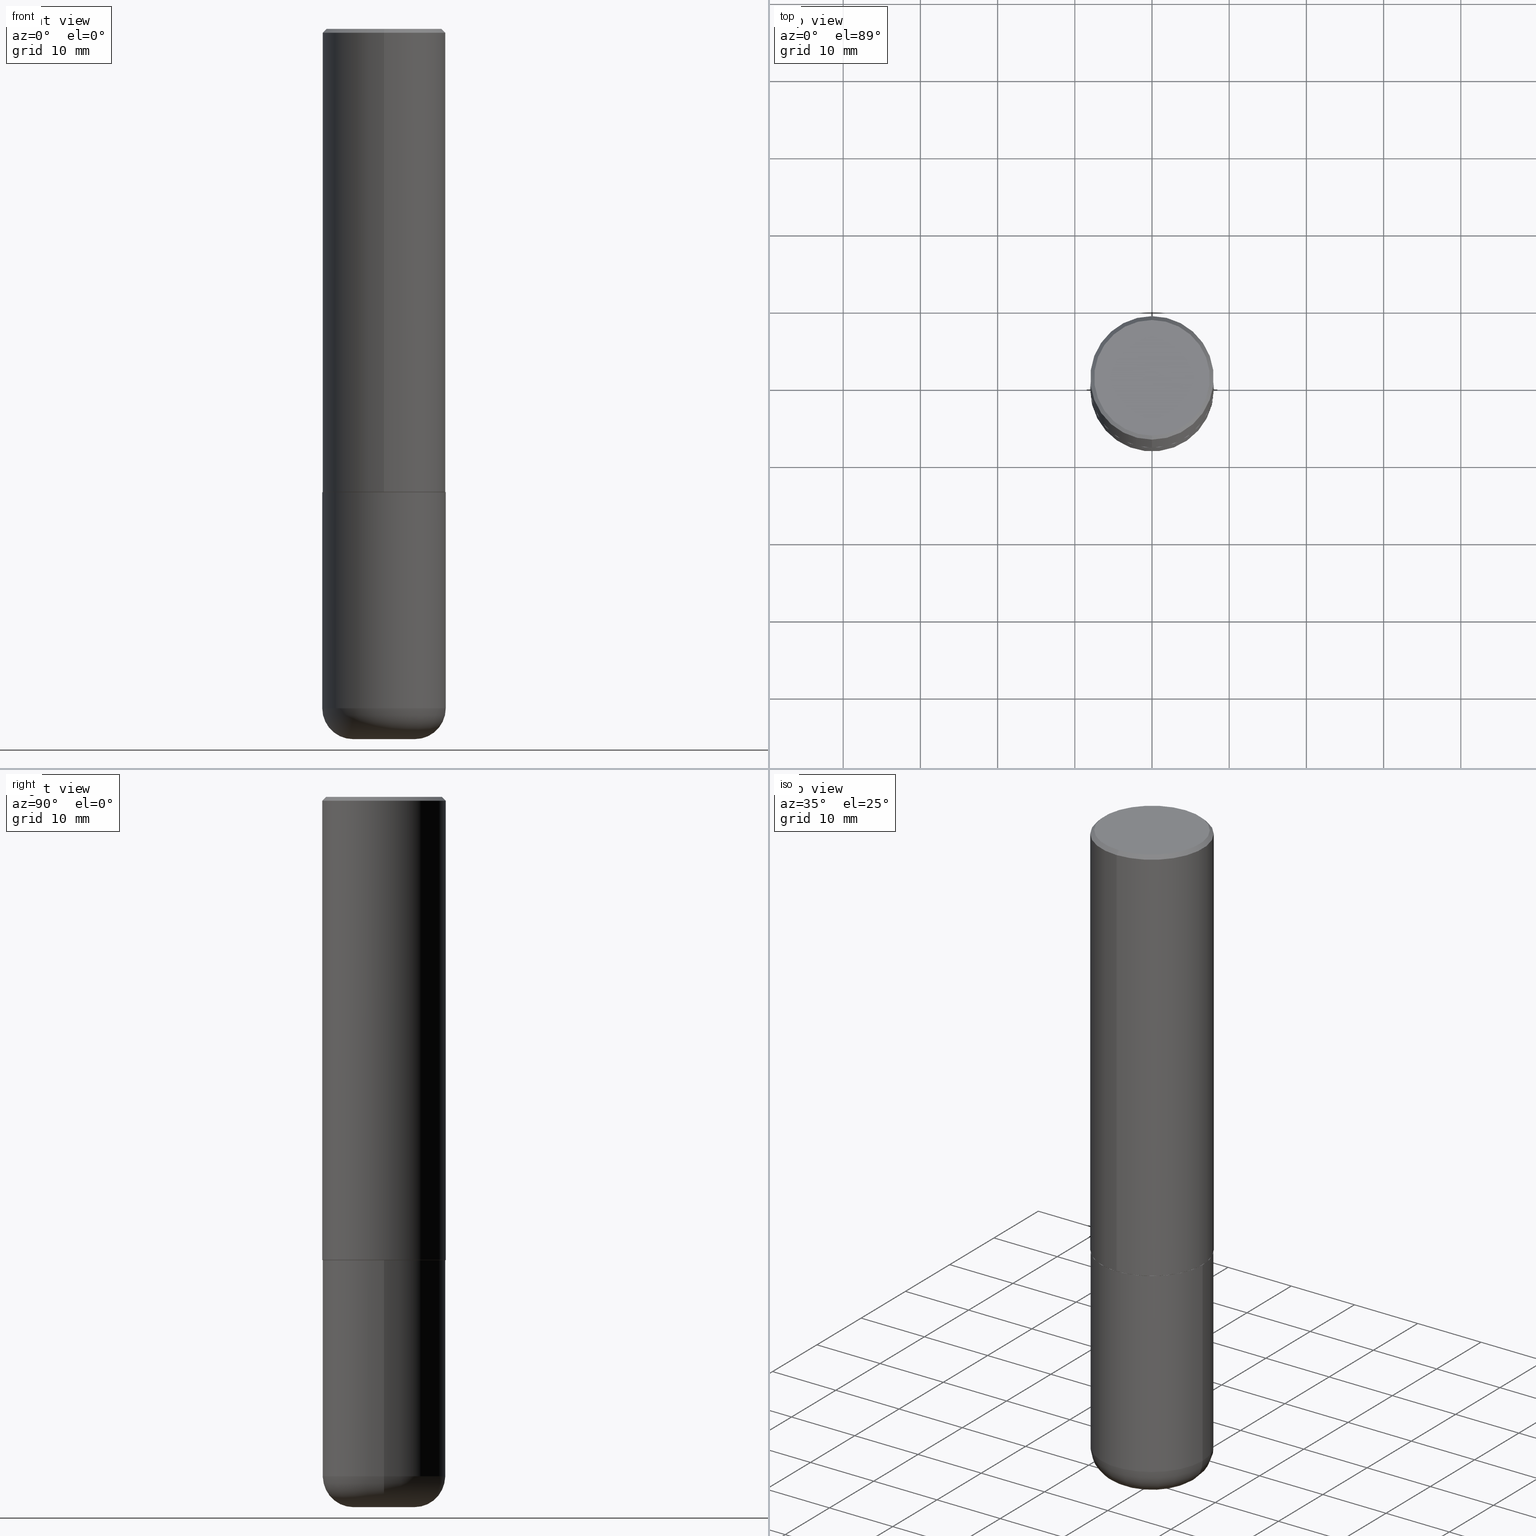
[diagram: canonical four-view strip — front | top / right | iso, engineering-drawing reading convention]
A machine part, canonical four-view strip (front | top / right | iso — engineering-drawing reading convention). The complete STEP part file that produces these views, byte-faithful:
ISO-10303-21;
HEADER;
FILE_DESCRIPTION (( 'STEP AP203' ),
    '1' );
FILE_NAME ('46483.STEP',
    '2024-03-05T00:00:16',
    ( '' ),
    ( '' ),
    'SwSTEP 2.0',
    'SolidWorks 2023',
    '' );
FILE_SCHEMA (( 'CONFIG_CONTROL_DESIGN' ));
ENDSEC;

DATA;
#1 = EDGE_CURVE ( 'NONE', #132, #163, #119, .T. ) ;
#2 = DIRECTION ( 'NONE',  ( 6.982962677686265922E-15, 1.000000000000000000, -3.496670018878888311E-15 ) ) ;
#3 = DIRECTION ( 'NONE',  ( -2.445468806185136597E-29, 3.491481338843145583E-15, 1.000000000000000000 ) ) ;
#4 = FACE_OUTER_BOUND ( 'NONE', #410, .T. ) ;
#5 = DIRECTION ( 'NONE',  ( 1.000000000000000000, 0.000000000000000000, 0.000000000000000000 ) ) ;
#6 =( CONVERSION_BASED_UNIT ( 'INCH', #207 ) LENGTH_UNIT ( ) NAMED_UNIT ( #20 ) );
#7 = DIRECTION ( 'NONE',  ( -6.982962677686265922E-15, -1.000000000000000000, 3.469564049740290009E-15 ) ) ;
#8 = AXIS2_PLACEMENT_3D ( 'NONE', #62, #284, #5 ) ;
#9 = CC_DESIGN_PERSON_AND_ORGANIZATION_ASSIGNMENT ( #138, #146, ( #273 ) ) ;
#10 = CARTESIAN_POINT ( 'NONE',  ( 5.770974637860933974E-29, -8.255756807098324700E-15, -2.362199999999999633 ) ) ;
#11 = CARTESIAN_POINT ( 'NONE',  ( -2.160713844398143757E-15, -0.3149500000000001743, -0.01999999999999898387 ) ) ;
#12 = FACE_OUTER_BOUND ( 'NONE', #193, .T. ) ;
#13 = PERSON_AND_ORGANIZATION_ROLE ( 'design_supplier' ) ;
#14 = EDGE_CURVE ( 'NONE', #197, #44, #286, .T. ) ;
#15 = DIRECTION ( 'NONE',  ( 5.024295867787889629E-15, 0.7071067811865257013, 0.7071067811865691111 ) ) ;
#16 = DATE_AND_TIME ( #304, #401 ) ;
#17 = ORIENTED_EDGE ( 'NONE', *, *, #70, .F. ) ;
#18 = DATE_AND_TIME ( #220, #97 ) ;
#19 = PERSON_AND_ORGANIZATION ( #199, #294 ) ;
#20 = DIMENSIONAL_EXPONENTS ( 1.000000000000000000, 0.000000000000000000, 0.000000000000000000, 0.000000000000000000, 0.000000000000000000, 0.000000000000000000, 0.000000000000000000 ) ;
#21 = AXIS2_PLACEMENT_3D ( 'NONE', #296, #172, #37 ) ;
#22 = AXIS2_PLACEMENT_3D ( 'NONE', #108, #137, #262 ) ;
#23 = CC_DESIGN_PERSON_AND_ORGANIZATION_ASSIGNMENT ( #173, #366, ( #330 ) ) ;
#24 = EDGE_LOOP ( 'NONE', ( #272, #348, #302, #148 ) ) ;
#25 = ORIENTED_EDGE ( 'NONE', *, *, #14, .T. ) ;
#26 =( NAMED_UNIT ( * ) SI_UNIT ( $, .STERADIAN. ) SOLID_ANGLE_UNIT ( ) );
#27 = AXIS2_PLACEMENT_3D ( 'NONE', #386, #295, #208 ) ;
#28 = CARTESIAN_POINT ( 'NONE',  ( 0.1574500000000000066, -1.319570457202378025E-14, -3.464499999999999691 ) ) ;
#29 = CIRCLE ( 'NONE', #85, 0.3139500000000000068 ) ;
#30 = EDGE_CURVE ( 'NONE', #307, #178, #293, .T. ) ;
#31 = CARTESIAN_POINT ( 'NONE',  ( 5.770974637860933974E-29, -8.255756807098324700E-15, -2.362199999999999633 ) ) ;
#32 = CARTESIAN_POINT ( 'NONE',  ( 0.1574500000000000621, -1.374561288289157517E-14, -3.621999999999999886 ) ) ;
#33 = CYLINDRICAL_SURFACE ( 'NONE', #336, 0.3149500000000000077 ) ;
#34 = CC_DESIGN_PERSON_AND_ORGANIZATION_ASSIGNMENT ( #328, #43, ( #198 ) ) ;
#35 = AXIS2_PLACEMENT_3D ( 'NONE', #353, #312, #200 ) ;
#36 = DIRECTION ( 'NONE',  ( -2.445468806185136877E-29, 3.491481338843145188E-15, 1.000000000000000000 ) ) ;
#37 = DIRECTION ( 'NONE',  ( -6.982962677686265133E-15, -1.000000000000000000, 3.494944038226367750E-15 ) ) ;
#38 = CARTESIAN_POINT ( 'NONE',  ( 5.776686413970529753E-29, -8.247577218615278049E-15, -2.362199999999999633 ) ) ;
#39 = AXIS2_PLACEMENT_3D ( 'NONE', #129, #201, #162 ) ;
#40 = CARTESIAN_POINT ( 'NONE',  ( -2.199284095337290265E-15, -0.3149500000000001743, 1.100732624839394981E-15 ) ) ;
#41 = CARTESIAN_POINT ( 'NONE',  ( 5.770974637860933974E-29, -8.255756807098324700E-15, -2.362199999999999633 ) ) ;
#42 = PERSON_AND_ORGANIZATION ( #199, #294 ) ;
#43 = PERSON_AND_ORGANIZATION_ROLE ( 'creator' ) ;
#44 = VERTEX_POINT ( 'NONE', #11 ) ;
#45 = DATE_AND_TIME ( #214, #65 ) ;
#46 = FACE_OUTER_BOUND ( 'NONE', #24, .T. ) ;
#47 = ADVANCED_FACE ( 'NONE', ( #292 ), #237, .T. ) ;
#48 = VECTOR ( 'NONE', #15, 39.37007874015748854 ) ;
#49 = ORIENTED_EDGE ( 'NONE', *, *, #411, .F. ) ;
#50 = CARTESIAN_POINT ( 'NONE',  ( -2.199284095337233467E-15, -0.3149500000000085564, -2.361199999999998411 ) ) ;
#51 = ORIENTED_EDGE ( 'NONE', *, *, #80, .F. ) ;
#52 = ORIENTED_EDGE ( 'NONE', *, *, #238, .F. ) ;
#53 = CARTESIAN_POINT ( 'NONE',  ( 0.000000000000000000, 0.000000000000000000, 0.000000000000000000 ) ) ;
#54 = VERTEX_POINT ( 'NONE', #390 ) ;
#55 = DIRECTION ( 'NONE',  ( 4.937700262164533843E-15, 0.7071067811865431318, -0.7071067811865517916 ) ) ;
#56 = ORIENTED_EDGE ( 'NONE', *, *, #196, .T. ) ;
#57 = ORIENTED_EDGE ( 'NONE', *, *, #322, .F. ) ;
#58 = FACE_OUTER_BOUND ( 'NONE', #351, .T. ) ;
#59 = ADVANCED_FACE ( 'NONE', ( #12 ), #107, .T. ) ;
#60 = EDGE_LOOP ( 'NONE', ( #383, #56, #248, #180 ) ) ;
#61 = FACE_OUTER_BOUND ( 'NONE', #117, .T. ) ;
#62 = CARTESIAN_POINT ( 'NONE',  ( 0.000000000000000000, 0.000000000000000000, 0.000000000000000000 ) ) ;
#63 = CLOSED_SHELL ( 'NONE', ( #387, #252, #127, #86, #59, #118, #283, #355 ) ) ;
#64 = DIRECTION ( 'NONE',  ( -2.445468806185136597E-29, 3.491481338843145583E-15, 1.000000000000000000 ) ) ;
#65 = LOCAL_TIME ( 19, 0, 16.00000000000000000, #114 ) ;
#66 = ORIENTED_EDGE ( 'NONE', *, *, #310, .T. ) ;
#67 = DIRECTION ( 'NONE',  ( 1.000000000000000000, -6.982962677686266711E-15, 4.876176775795936353E-29 ) ) ;
#68 = LINE ( 'NONE', #202, #392 ) ;
#69 = EDGE_LOOP ( 'NONE', ( #215, #253, #84, #382 ) ) ;
#70 = EDGE_CURVE ( 'NONE', #197, #54, #271, .T. ) ;
#71 = DIRECTION ( 'NONE',  ( -1.000000000000000000, 6.982962677686265922E-15, -4.876176775795935793E-29 ) ) ;
#72 = CC_DESIGN_APPROVAL ( #397, ( #198 ) ) ;
#73 = CARTESIAN_POINT ( 'NONE',  ( 4.886101632258876704E-31, -6.989888076452765624E-17, -0.02000000000000008715 ) ) ;
#74 = EDGE_CURVE ( 'NONE', #342, #311, #251, .T. ) ;
#75 = DIRECTION ( 'NONE',  ( -6.982962677686265922E-15, -1.000000000000000000, 3.496670018878888311E-15 ) ) ;
#76 = COORDINATED_UNIVERSAL_TIME_OFFSET ( 5, 0, .BEHIND. ) ;
#77 = AXIS2_PLACEMENT_3D ( 'NONE', #264, #359, #2 ) ;
#78 = DIRECTION ( 'NONE',  ( 2.438088387897960049E-29, -3.491481338843145188E-15, -1.000000000000000000 ) ) ;
#79 = EDGE_LOOP ( 'NONE', ( #87, #126, #17, #394 ) ) ;
#80 = EDGE_CURVE ( 'NONE', #163, #309, #325, .T. ) ;
#81 = APPROVAL_ROLE ( '' ) ;
#82 = ORIENTED_EDGE ( 'NONE', *, *, #337, .F. ) ;
#83 = DIRECTION ( 'NONE',  ( 1.000000000000000000, -6.982962677686266711E-15, 0.000000000000000000 ) ) ;
#84 = ORIENTED_EDGE ( 'NONE', *, *, #316, .T. ) ;
#85 = AXIS2_PLACEMENT_3D ( 'NONE', #31, #285, #413 ) ;
#86 = ADVANCED_FACE ( 'NONE', ( #261 ), #289, .T. ) ;
#87 = ORIENTED_EDGE ( 'NONE', *, *, #74, .T. ) ;
#88 = DIRECTION ( 'NONE',  ( 1.000000000000000000, -6.982962677686266711E-15, 4.883557194083112901E-29 ) ) ;
#89 = CARTESIAN_POINT ( 'NONE',  ( 2.129454468560428545E-15, 0.2949500000000003785, -1.290191682787912004E-15 ) ) ;
#90 =( GEOMETRIC_REPRESENTATION_CONTEXT ( 3 ) GLOBAL_UNCERTAINTY_ASSIGNED_CONTEXT ( ( #123 ) ) GLOBAL_UNIT_ASSIGNED_CONTEXT ( ( #6, #183, #26 ) ) REPRESENTATION_CONTEXT ( 'NONE', 'WORKASPACE' ) );
#91 = ORIENTED_EDGE ( 'NONE', *, *, #411, .T. ) ;
#92 = EDGE_CURVE ( 'NONE', #182, #44, #135, .T. ) ;
#93 = DIRECTION ( 'NONE',  ( 1.000000000000000000, -6.982962677686268288E-15, 0.000000000000000000 ) ) ;
#94 = CALENDAR_DATE ( 2024, 4, 3 ) ;
#95 = EDGE_LOOP ( 'NONE', ( #228, #223 ) ) ;
#96 = CARTESIAN_POINT ( 'NONE',  ( 0.000000000000000000, 0.000000000000000000, 0.000000000000000000 ) ) ;
#97 = LOCAL_TIME ( 19, 0, 16.00000000000000000, #218 ) ;
#98 = CARTESIAN_POINT ( 'NONE',  ( 5.768531587044804082E-29, -8.252261863060098117E-15, -2.361199999999999299 ) ) ;
#99 = EDGE_CURVE ( 'NONE', #342, #197, #101, .T. ) ;
#100 = ORIENTED_EDGE ( 'NONE', *, *, #337, .T. ) ;
#101 = LINE ( 'NONE', #358, #143 ) ;
#102 = DIRECTION ( 'NONE',  ( -1.000000000000000000, 6.982962677686265922E-15, -4.876176775795935793E-29 ) ) ;
#103 = AXIS2_PLACEMENT_3D ( 'NONE', #398, #247, #375 ) ;
#104 = FACE_OUTER_BOUND ( 'NONE', #125, .T. ) ;
#105 = SHAPE_DEFINITION_REPRESENTATION ( #159, #373 ) ;
#106 = ADVANCED_FACE ( 'NONE', ( #206 ), #267, .F. ) ;
#107 = CYLINDRICAL_SURFACE ( 'NONE', #275, 0.3149500000000001743 ) ;
#108 = CARTESIAN_POINT ( 'NONE',  ( 8.857488016002564476E-29, -1.264614540928987199E-14, -3.621999999999999886 ) ) ;
#109 = FACE_OUTER_BOUND ( 'NONE', #60, .T. ) ;
#110 = MANIFOLD_SOLID_BREP ( 'Body-Move/Copy2[1]', #229 ) ;
#111 = AXIS2_PLACEMENT_3D ( 'NONE', #96, #414, #67 ) ;
#112 = CC_DESIGN_APPROVAL ( #274, ( #330 ) ) ;
#113 = EDGE_CURVE ( 'NONE', #339, #158, #170, .T. ) ;
#114 = COORDINATED_UNIVERSAL_TIME_OFFSET ( 5, 0, .BEHIND. ) ;
#115 = DIRECTION ( 'NONE',  ( -4.851104656540950075E-15, -0.7071067811865480168, -0.7071067811865469066 ) ) ;
#116 = ORIENTED_EDGE ( 'NONE', *, *, #1, .T. ) ;
#117 = EDGE_LOOP ( 'NONE', ( #408, #186, #332, #51 ) ) ;
#118 = ADVANCED_FACE ( 'NONE', ( #4 ), #230, .T. ) ;
#119 = CIRCLE ( 'NONE', #39, 0.3149500000000000632 ) ;
#120 = ORIENTED_EDGE ( 'NONE', *, *, #191, .T. ) ;
#121 = TOROIDAL_SURFACE ( 'NONE', #327, 0.1574500000000000066, 0.1575000000000000844 ) ;
#122 = FACE_OUTER_BOUND ( 'NONE', #412, .T. ) ;
#123 = UNCERTAINTY_MEASURE_WITH_UNIT (LENGTH_MEASURE( 1.000000000000000082E-05 ), #6, 'distance_accuracy_value', 'NONE');
#124 = APPROVAL_STATUS ( 'not_yet_approved' ) ;
#125 = EDGE_LOOP ( 'NONE', ( #52, #116, #256, #213 ) ) ;
#126 = ORIENTED_EDGE ( 'NONE', *, *, #205, .T. ) ;
#127 = ADVANCED_FACE ( 'NONE', ( #109 ), #204, .T. ) ;
#128 = AXIS2_PLACEMENT_3D ( 'NONE', #10, #388, #268 ) ;
#129 = CARTESIAN_POINT ( 'NONE',  ( 8.472326679028403758E-29, -1.209623709842207549E-14, -3.464499999999999247 ) ) ;
#130 = DIRECTION ( 'NONE',  ( -2.443050816129427755E-29, 3.494944038226367750E-15, 1.000000000000000000 ) ) ;
#131 = DIRECTION ( 'NONE',  ( -6.982962677686266711E-15, -1.000000000000000000, 3.491481338843145583E-15 ) ) ;
#132 = VERTEX_POINT ( 'NONE', #323 ) ;
#133 = CARTESIAN_POINT ( 'NONE',  ( 6.336246238425474629E-45, -9.064414816718317590E-31, -2.593579387130437049E-16 ) ) ;
#134 = CC_DESIGN_PERSON_AND_ORGANIZATION_ASSIGNMENT ( #179, #277, ( #278 ) ) ;
#135 = CIRCLE ( 'NONE', #313, 0.3149500000000000632 ) ;
#136 = APPROVAL_PERSON_ORGANIZATION ( #376, #274, #185 ) ;
#137 = DIRECTION ( 'NONE',  ( -2.445468806185136597E-29, 3.491481338843145583E-15, 1.000000000000000000 ) ) ;
#138 = PERSON_AND_ORGANIZATION ( #199, #294 ) ;
#139 = DIRECTION ( 'NONE',  ( -2.445468806185136597E-29, 3.491481338843145583E-15, 1.000000000000000000 ) ) ;
#140 = CARTESIAN_POINT ( 'NONE',  ( 5.770974637860933974E-29, -8.255756807098324700E-15, -2.362199999999999633 ) ) ;
#141 = EDGE_CURVE ( 'NONE', #156, #309, #306, .T. ) ;
#142 =( LENGTH_UNIT ( ) NAMED_UNIT ( * ) SI_UNIT ( $, .METRE. ) );
#143 = VECTOR ( 'NONE', #291, 39.37007874015748854 ) ;
#144 = CIRCLE ( 'NONE', #164, 0.1575000000000001399 ) ;
#145 = DIRECTION ( 'NONE',  ( -6.982962677686264344E-15, -1.000000000000000000, 3.494944038226367355E-15 ) ) ;
#146 = PERSON_AND_ORGANIZATION_ROLE ( 'design_owner' ) ;
#147 = CARTESIAN_POINT ( 'NONE',  ( 0.000000000000000000, 0.000000000000000000, 0.000000000000000000 ) ) ;
#148 = ORIENTED_EDGE ( 'NONE', *, *, #287, .F. ) ;
#149 = ORIENTED_EDGE ( 'NONE', *, *, #92, .F. ) ;
#150 = EDGE_CURVE ( 'NONE', #44, #182, #384, .T. ) ;
#151 = DATE_TIME_ROLE ( 'creation_date' ) ;
#152 = AXIS2_PLACEMENT_3D ( 'NONE', #140, #365, #235 ) ;
#153 = CIRCLE ( 'NONE', #299, 0.3149500000000002853 ) ;
#154 = EDGE_LOOP ( 'NONE', ( #120, #418 ) ) ;
#155 = APPLICATION_PROTOCOL_DEFINITION ( 'international standard', 'config_control_design', 1994, #335 ) ;
#156 = VERTEX_POINT ( 'NONE', #371 ) ;
#157 = ORIENTED_EDGE ( 'NONE', *, *, #287, .T. ) ;
#158 = VERTEX_POINT ( 'NONE', #245 ) ;
#159 = PRODUCT_DEFINITION_SHAPE ( 'NONE', 'NONE',  #330 ) ;
#160 = ORIENTED_EDGE ( 'NONE', *, *, #70, .T. ) ;
#161 = EDGE_CURVE ( 'NONE', #178, #307, #188, .T. ) ;
#162 = DIRECTION ( 'NONE',  ( 1.000000000000000000, -6.982962677686268288E-15, 0.000000000000000000 ) ) ;
#163 = VERTEX_POINT ( 'NONE', #352 ) ;
#164 = AXIS2_PLACEMENT_3D ( 'NONE', #28, #131, #93 ) ;
#165 = CARTESIAN_POINT ( 'NONE',  ( 0.000000000000000000, 0.000000000000000000, 0.000000000000000000 ) ) ;
#166 = DIRECTION ( 'NONE',  ( 2.438088387897960049E-29, -3.491481338843145188E-15, -1.000000000000000000 ) ) ;
#167 = ADVANCED_FACE ( 'NONE', ( #61 ), #254, .T. ) ;
#168 = DIRECTION ( 'NONE',  ( -2.443050816129427755E-29, 3.494944038226367750E-15, 1.000000000000000000 ) ) ;
#169 = CARTESIAN_POINT ( 'NONE',  ( 8.857488016002564476E-29, -1.264614540928987199E-14, -3.621999999999999886 ) ) ;
#170 = CIRCLE ( 'NONE', #372, 0.1574500000000000621 ) ;
#171 = AXIS2_PLACEMENT_3D ( 'NONE', #407, #239, #321 ) ;
#172 = DIRECTION ( 'NONE',  ( -2.443050816129427755E-29, 3.494944038226367750E-15, 1.000000000000000000 ) ) ;
#173 = PERSON_AND_ORGANIZATION ( #199, #294 ) ;
#174 = APPROVAL ( #176, 'UNSPECIFIED' ) ;
#175 = DIRECTION ( 'NONE',  ( -6.982962677686266711E-15, -1.000000000000000000, 3.480615376543096919E-15 ) ) ;
#176 = APPROVAL_STATUS ( 'not_yet_approved' ) ;
#177 = PERSON_AND_ORGANIZATION ( #199, #294 ) ;
#178 = VERTEX_POINT ( 'NONE', #258 ) ;
#179 = PERSON_AND_ORGANIZATION ( #199, #294 ) ;
#180 = ORIENTED_EDGE ( 'NONE', *, *, #316, .F. ) ;
#181 = EDGE_CURVE ( 'NONE', #163, #132, #343, .T. ) ;
#182 = VERTEX_POINT ( 'NONE', #217 ) ;
#183 =( NAMED_UNIT ( * ) PLANE_ANGLE_UNIT ( ) SI_UNIT ( $, .RADIAN. ) );
#184 = DIRECTION ( 'NONE',  ( 1.000000000000000000, -6.982962677686268288E-15, 0.000000000000000000 ) ) ;
#185 = APPROVAL_ROLE ( '' ) ;
#186 = ORIENTED_EDGE ( 'NONE', *, *, #238, .T. ) ;
#187 = DIRECTION ( 'NONE',  ( -2.443050816129427755E-29, 3.494944038226367750E-15, 1.000000000000000000 ) ) ;
#188 = CIRCLE ( 'NONE', #241, 0.2949500000000003785 ) ;
#189 = CC_DESIGN_APPROVAL ( #174, ( #278 ) ) ;
#190 = ORIENTED_EDGE ( 'NONE', *, *, #322, .T. ) ;
#191 = EDGE_CURVE ( 'NONE', #309, #156, #360, .T. ) ;
#192 = FACE_OUTER_BOUND ( 'NONE', #95, .T. ) ;
#193 = EDGE_LOOP ( 'NONE', ( #82, #190, #25, #149 ) ) ;
#194 = CARTESIAN_POINT ( 'NONE',  ( 8.472326679028403758E-29, -1.209623709842207707E-14, -3.464499999999999691 ) ) ;
#195 = PLANE ( 'NONE',  #35 ) ;
#196 = EDGE_CURVE ( 'NONE', #178, #44, #297, .T. ) ;
#197 = VERTEX_POINT ( 'NONE', #50 ) ;
#198 = PRODUCT_DEFINITION_FORMATION_WITH_SPECIFIED_SOURCE ( 'ANY', '', #273, .NOT_KNOWN. ) ;
#199 = PERSON ( 'UNSPECIFIED', 'UNSPECIFIED', 'UNSPECIFIED', ('UNSPECIFIED'), ('UNSPECIFIED'), ('UNSPECIFIED') ) ;
#200 = DIRECTION ( 'NONE',  ( -6.982962677686265922E-15, -1.000000000000000000, 3.494944038226367750E-15 ) ) ;
#201 = DIRECTION ( 'NONE',  ( -2.445468806185136597E-29, 3.491481338843145583E-15, 1.000000000000000000 ) ) ;
#202 = CARTESIAN_POINT ( 'NONE',  ( 2.237854346276435985E-15, 0.3149500000000001743, -1.100732624839394981E-15 ) ) ;
#203 = DIRECTION ( 'NONE',  ( -2.445468806185136597E-29, 3.491481338843145583E-15, 1.000000000000000000 ) ) ;
#204 = CONICAL_SURFACE ( 'NONE', #77, 0.3149500000000000632, 0.7853981633974456145 ) ;
#205 = EDGE_CURVE ( 'NONE', #311, #54, #242, .T. ) ;
#206 = FACE_OUTER_BOUND ( 'NONE', #154, .T. ) ;
#207 = LENGTH_MEASURE_WITH_UNIT ( LENGTH_MEASURE( 0.02539999999999999897 ), #142 );
#208 = DIRECTION ( 'NONE',  ( 6.982962677686265922E-15, 1.000000000000000000, -3.496670018878888311E-15 ) ) ;
#209 = DIRECTION ( 'NONE',  ( -2.443050816129427755E-29, 3.494944038226367750E-15, 1.000000000000000000 ) ) ;
#210 = CC_DESIGN_PERSON_AND_ORGANIZATION_ASSIGNMENT ( #177, #13, ( #198 ) ) ;
#211 = CIRCLE ( 'NONE', #22, 0.1574500000000000621 ) ;
#212 = DIRECTION ( 'NONE',  ( -2.443050816129427755E-29, 3.494944038226367750E-15, 1.000000000000000000 ) ) ;
#213 = ORIENTED_EDGE ( 'NONE', *, *, #141, .F. ) ;
#214 = CALENDAR_DATE ( 2024, 4, 3 ) ;
#215 = ORIENTED_EDGE ( 'NONE', *, *, #196, .F. ) ;
#216 = EDGE_CURVE ( 'NONE', #158, #132, #281, .T. ) ;
#217 = CARTESIAN_POINT ( 'NONE',  ( 2.199284095337290265E-15, 0.3149500000000000077, -0.02000000000000118697 ) ) ;
#218 = COORDINATED_UNIVERSAL_TIME_OFFSET ( 5, 0, .BEHIND. ) ;
#219 = FACE_OUTER_BOUND ( 'NONE', #347, .T. ) ;
#220 = CALENDAR_DATE ( 2024, 4, 3 ) ;
#221 = VECTOR ( 'NONE', #319, 39.37007874015748143 ) ;
#222 = CC_DESIGN_SECURITY_CLASSIFICATION ( #278, ( #198 ) ) ;
#223 = ORIENTED_EDGE ( 'NONE', *, *, #161, .T. ) ;
#224 = DIRECTION ( 'NONE',  ( -6.982962677686265133E-15, -1.000000000000000000, 3.494944038226367750E-15 ) ) ;
#225 = APPLICATION_CONTEXT ( 'configuration controlled 3d designs of mechanical parts and assemblies' ) ;
#226 = DIRECTION ( 'NONE',  ( -6.982962677686264344E-15, -1.000000000000000000, 3.494944038226367355E-15 ) ) ;
#227 = DATE_AND_TIME ( #94, #259 ) ;
#228 = ORIENTED_EDGE ( 'NONE', *, *, #30, .T. ) ;
#229 = CLOSED_SHELL ( 'NONE', ( #167, #243, #106, #362, #265, #47 ) ) ;
#230 = CONICAL_SURFACE ( 'NONE', #152, 0.3139500000000000068, 0.7853981633974141952 ) ;
#231 = VECTOR ( 'NONE', #276, 39.37007874015748143 ) ;
#232 = DIRECTION ( 'NONE',  ( -2.443050816129427755E-29, 3.494944038226367750E-15, 1.000000000000000000 ) ) ;
#233 = ORIENTED_EDGE ( 'NONE', *, *, #216, .F. ) ;
#234 = DIRECTION ( 'NONE',  ( -6.982962677686265922E-15, -1.000000000000000000, 3.496670018878888311E-15 ) ) ;
#235 = DIRECTION ( 'NONE',  ( -6.982962677686266711E-15, -1.000000000000000000, 3.480615376543096919E-15 ) ) ;
#236 = VECTOR ( 'NONE', #115, 39.37007874015748854 ) ;
#237 = PLANE ( 'NONE',  #257 ) ;
#238 = EDGE_CURVE ( 'NONE', #132, #156, #303, .T. ) ;
#239 = DIRECTION ( 'NONE',  ( 2.443050816129427475E-29, -3.494944038226367750E-15, -1.000000000000000000 ) ) ;
#240 = CARTESIAN_POINT ( 'NONE',  ( 5.768531587044804082E-29, -8.252261863060098117E-15, -2.361199999999999299 ) ) ;
#241 = AXIS2_PLACEMENT_3D ( 'NONE', #133, #130, #224 ) ;
#242 = LINE ( 'NONE', #370, #48 ) ;
#243 = ADVANCED_FACE ( 'NONE', ( #46 ), #121, .T. ) ;
#244 = ORIENTED_EDGE ( 'NONE', *, *, #205, .F. ) ;
#245 = CARTESIAN_POINT ( 'NONE',  ( -0.1574500000000000621, -1.069288931199061498E-14, -3.621999999999999886 ) ) ;
#246 = APPROVAL_PERSON_ORGANIZATION ( #19, #397, #350 ) ;
#247 = DIRECTION ( 'NONE',  ( 7.105427357601001859E-15, 1.000000000000000000, -3.491481338843145583E-15 ) ) ;
#248 = ORIENTED_EDGE ( 'NONE', *, *, #150, .T. ) ;
#249 = CARTESIAN_POINT ( 'NONE',  ( 8.472326679028403758E-29, -1.209623709842207707E-14, -3.464499999999999691 ) ) ;
#250 = ORIENTED_EDGE ( 'NONE', *, *, #150, .F. ) ;
#251 = CIRCLE ( 'NONE', #326, 0.3139500000000000068 ) ;
#252 = ADVANCED_FACE ( 'NONE', ( #122 ), #341, .T. ) ;
#253 = ORIENTED_EDGE ( 'NONE', *, *, #30, .F. ) ;
#254 = CYLINDRICAL_SURFACE ( 'NONE', #111, 0.3149500000000000077 ) ;
#255 = CARTESIAN_POINT ( 'NONE',  ( 2.234301632597693067E-15, 0.3139499999999917357, -2.362200000000000966 ) ) ;
#256 = ORIENTED_EDGE ( 'NONE', *, *, #80, .T. ) ;
#257 = AXIS2_PLACEMENT_3D ( 'NONE', #169, #78, #102 ) ;
#258 = CARTESIAN_POINT ( 'NONE',  ( -2.092108864420429609E-15, -0.2949500000000003785, 7.714758053618247912E-16 ) ) ;
#259 = LOCAL_TIME ( 19, 0, 16.00000000000000000, #314 ) ;
#260 = CC_DESIGN_DATE_AND_TIME_ASSIGNMENT ( #16, #151, ( #330 ) ) ;
#261 = FACE_OUTER_BOUND ( 'NONE', #69, .T. ) ;
#262 = DIRECTION ( 'NONE',  ( 1.000000000000000000, -6.982962677686263555E-15, 0.000000000000000000 ) ) ;
#263 = DIRECTION ( 'NONE',  ( 1.000000000000000000, -6.982962677686266711E-15, 0.000000000000000000 ) ) ;
#264 = CARTESIAN_POINT ( 'NONE',  ( 4.886101632258876704E-31, -6.989888076452765624E-17, -0.02000000000000008715 ) ) ;
#265 = ADVANCED_FACE ( 'NONE', ( #219 ), #345, .T. ) ;
#266 = AXIS2_PLACEMENT_3D ( 'NONE', #194, #64, #349 ) ;
#267 = PLANE ( 'NONE',  #380 ) ;
#268 = DIRECTION ( 'NONE',  ( -6.982962677686266711E-15, -1.000000000000000000, 3.480615376543096919E-15 ) ) ;
#269 = CARTESIAN_POINT ( 'NONE',  ( 0.3149500000000000077, -2.199284095337289871E-15, 1.535751875536930130E-29 ) ) ;
#270 = DATE_AND_TIME ( #338, #374 ) ;
#271 = CIRCLE ( 'NONE', #354, 0.3149500000000002853 ) ;
#272 = ORIENTED_EDGE ( 'NONE', *, *, #113, .T. ) ;
#273 = PRODUCT ( '46483', '46483', '', ( #364 ) ) ;
#274 = APPROVAL ( #346, 'UNSPECIFIED' ) ;
#275 = AXIS2_PLACEMENT_3D ( 'NONE', #147, #329, #145 ) ;
#276 = DIRECTION ( 'NONE',  ( -2.445468806185136877E-29, 3.491481338843145188E-15, 1.000000000000000000 ) ) ;
#277 = PERSON_AND_ORGANIZATION_ROLE ( 'classification_officer' ) ;
#278 = SECURITY_CLASSIFICATION ( '', '', #340 ) ;
#279 = EDGE_LOOP ( 'NONE', ( #282, #49 ) ) ;
#280 = CARTESIAN_POINT ( 'NONE',  ( -2.192301132659545875E-15, -0.3139500000000082780, -2.362199999999998745 ) ) ;
#281 = CIRCLE ( 'NONE', #103, 0.1575000000000001399 ) ;
#282 = ORIENTED_EDGE ( 'NONE', *, *, #113, .F. ) ;
#283 = ADVANCED_FACE ( 'NONE', ( #58 ), #195, .F. ) ;
#284 = DIRECTION ( 'NONE',  ( 0.000000000000000000, 0.000000000000000000, 1.000000000000000000 ) ) ;
#285 = DIRECTION ( 'NONE',  ( -2.443050816129427755E-29, 3.494944038226367750E-15, 1.000000000000000000 ) ) ;
#286 = LINE ( 'NONE', #40, #221 ) ;
#287 = EDGE_CURVE ( 'NONE', #339, #163, #144, .T. ) ;
#288 = ORIENTED_EDGE ( 'NONE', *, *, #310, .F. ) ;
#289 = CONICAL_SURFACE ( 'NONE', #27, 0.3149500000000000632, 0.7853981633974456145 ) ;
#290 = DIRECTION ( 'NONE',  ( 1.000000000000000000, -6.982962677686263555E-15, 0.000000000000000000 ) ) ;
#291 = DIRECTION ( 'NONE',  ( -4.937700262164378437E-15, -0.7071067811865208164, 0.7071067811865739960 ) ) ;
#292 = FACE_OUTER_BOUND ( 'NONE', #279, .T. ) ;
#293 = CIRCLE ( 'NONE', #21, 0.2949500000000003785 ) ;
#294 = ORGANIZATION ( 'UNSPECIFIED', 'UNSPECIFIED', '' ) ;
#295 = DIRECTION ( 'NONE',  ( 2.443050816129427755E-29, -3.494944038226367750E-15, -1.000000000000000000 ) ) ;
#296 = CARTESIAN_POINT ( 'NONE',  ( 6.336246238425474629E-45, -9.064414816718317590E-31, -2.593579387130437049E-16 ) ) ;
#297 = LINE ( 'NONE', #393, #236 ) ;
#298 = AXIS2_PLACEMENT_3D ( 'NONE', #357, #3, #184 ) ;
#299 = AXIS2_PLACEMENT_3D ( 'NONE', #98, #232, #356 ) ;
#300 = ORIENTED_EDGE ( 'NONE', *, *, #14, .F. ) ;
#301 = COORDINATED_UNIVERSAL_TIME_OFFSET ( 5, 0, .BEHIND. ) ;
#302 = ORIENTED_EDGE ( 'NONE', *, *, #181, .F. ) ;
#303 = LINE ( 'NONE', #333, #231 ) ;
#304 = CALENDAR_DATE ( 2024, 4, 3 ) ;
#305 = ORIENTED_EDGE ( 'NONE', *, *, #1, .F. ) ;
#306 = CIRCLE ( 'NONE', #400, 0.3149500000000000077 ) ;
#307 = VERTEX_POINT ( 'NONE', #89 ) ;
#308 = PLANE ( 'NONE',  #171 ) ;
#309 = VERTEX_POINT ( 'NONE', #315 ) ;
#310 = EDGE_CURVE ( 'NONE', #311, #342, #29, .T. ) ;
#311 = VERTEX_POINT ( 'NONE', #255 ) ;
#312 = DIRECTION ( 'NONE',  ( -2.443050816129427475E-29, 3.494944038226367750E-15, 1.000000000000000000 ) ) ;
#313 = AXIS2_PLACEMENT_3D ( 'NONE', #385, #209, #234 ) ;
#314 = COORDINATED_UNIVERSAL_TIME_OFFSET ( 5, 0, .BEHIND. ) ;
#315 = CARTESIAN_POINT ( 'NONE',  ( 0.3149500000000000077, -1.044686131395256792E-14, -2.362199999999999633 ) ) ;
#316 = EDGE_CURVE ( 'NONE', #307, #182, #402, .T. ) ;
#317 = DIRECTION ( 'NONE',  ( -2.443050816129427755E-29, 3.494944038226367750E-15, 1.000000000000000000 ) ) ;
#318 = FACE_OUTER_BOUND ( 'NONE', #79, .T. ) ;
#319 = DIRECTION ( 'NONE',  ( -2.443050816129427755E-29, 3.494944038226367750E-15, 1.000000000000000000 ) ) ;
#320 = VECTOR ( 'NONE', #55, 39.37007874015748854 ) ;
#321 = DIRECTION ( 'NONE',  ( 6.982962677686265922E-15, 1.000000000000000000, -3.494944038226367750E-15 ) ) ;
#322 = EDGE_CURVE ( 'NONE', #54, #197, #153, .T. ) ;
#323 = CARTESIAN_POINT ( 'NONE',  ( -0.3149500000000001743, -9.858382752145637926E-15, -3.464499999999999247 ) ) ;
#324 = DIRECTION ( 'NONE',  ( 1.000000000000000000, -6.982962677686266711E-15, 4.876176775795936353E-29 ) ) ;
#325 = LINE ( 'NONE', #269, #368 ) ;
#326 = AXIS2_PLACEMENT_3D ( 'NONE', #41, #168, #175 ) ;
#327 = AXIS2_PLACEMENT_3D ( 'NONE', #249, #331, #88 ) ;
#328 = PERSON_AND_ORGANIZATION ( #199, #294 ) ;
#329 = DIRECTION ( 'NONE',  ( -2.443050816129427755E-29, 3.494944038226367750E-15, 1.000000000000000000 ) ) ;
#330 = PRODUCT_DEFINITION ( 'UNKNOWN', '', #198, #381 ) ;
#331 = DIRECTION ( 'NONE',  ( -2.445468806185136597E-29, 3.491481338843145583E-15, 1.000000000000000000 ) ) ;
#332 = ORIENTED_EDGE ( 'NONE', *, *, #191, .F. ) ;
#333 = CARTESIAN_POINT ( 'NONE',  ( -0.3149500000000000077, 2.237854346276435590E-15, -1.549218606675782676E-29 ) ) ;
#334 = ORIENTED_EDGE ( 'NONE', *, *, #99, .T. ) ;
#335 = APPLICATION_CONTEXT ( 'configuration controlled 3d designs of mechanical parts and assemblies' ) ;
#336 = AXIS2_PLACEMENT_3D ( 'NONE', #165, #415, #324 ) ;
#337 = EDGE_CURVE ( 'NONE', #54, #182, #68, .T. ) ;
#338 = CALENDAR_DATE ( 2024, 4, 3 ) ;
#339 = VERTEX_POINT ( 'NONE', #32 ) ;
#340 = SECURITY_CLASSIFICATION_LEVEL ( 'unclassified' ) ;
#341 = CYLINDRICAL_SURFACE ( 'NONE', #361, 0.3149500000000001743 ) ;
#342 = VERTEX_POINT ( 'NONE', #280 ) ;
#343 = CIRCLE ( 'NONE', #298, 0.3149500000000000632 ) ;
#344 = CARTESIAN_POINT ( 'NONE',  ( 2.199284095337290265E-15, 0.3149500000000000077, -0.02000000000000118697 ) ) ;
#345 = TOROIDAL_SURFACE ( 'NONE', #266, 0.1574500000000000066, 0.1575000000000000844 ) ;
#346 = APPROVAL_STATUS ( 'not_yet_approved' ) ;
#347 = EDGE_LOOP ( 'NONE', ( #233, #91, #157, #305 ) ) ;
#348 = ORIENTED_EDGE ( 'NONE', *, *, #216, .T. ) ;
#349 = DIRECTION ( 'NONE',  ( 1.000000000000000000, -6.982962677686266711E-15, 4.883557194083112901E-29 ) ) ;
#350 = APPROVAL_ROLE ( '' ) ;
#351 = EDGE_LOOP ( 'NONE', ( #377, #288 ) ) ;
#352 = CARTESIAN_POINT ( 'NONE',  ( 0.3149500000000001743, -1.429552119375936694E-14, -3.464499999999999247 ) ) ;
#353 = CARTESIAN_POINT ( 'NONE',  ( 5.770974637860933974E-29, -8.255756807098324700E-15, -2.362199999999999633 ) ) ;
#354 = AXIS2_PLACEMENT_3D ( 'NONE', #240, #212, #7 ) ;
#355 = ADVANCED_FACE ( 'NONE', ( #192 ), #308, .F. ) ;
#356 = DIRECTION ( 'NONE',  ( -6.982962677686265922E-15, -1.000000000000000000, 3.469564049740290009E-15 ) ) ;
#357 = CARTESIAN_POINT ( 'NONE',  ( 8.472326679028403758E-29, -1.209623709842207549E-14, -3.464499999999999247 ) ) ;
#358 = CARTESIAN_POINT ( 'NONE',  ( -2.192301132659545875E-15, -0.3139500000000082780, -2.362199999999998745 ) ) ;
#359 = DIRECTION ( 'NONE',  ( 2.443050816129427755E-29, -3.494944038226367750E-15, -1.000000000000000000 ) ) ;
#360 = CIRCLE ( 'NONE', #409, 0.3149500000000000077 ) ;
#361 = AXIS2_PLACEMENT_3D ( 'NONE', #53, #187, #226 ) ;
#362 = ADVANCED_FACE ( 'NONE', ( #104 ), #33, .T. ) ;
#363 = APPROVAL_DATE_TIME ( #227, #397 ) ;
#364 = MECHANICAL_CONTEXT ( 'NONE', #335, 'mechanical' ) ;
#365 = DIRECTION ( 'NONE',  ( -2.443050816129427755E-29, 3.494944038226367750E-15, 1.000000000000000000 ) ) ;
#366 = PERSON_AND_ORGANIZATION_ROLE ( 'creator' ) ;
#367 = CARTESIAN_POINT ( 'NONE',  ( 5.776686413970529753E-29, -8.247577218615278049E-15, -2.362199999999999633 ) ) ;
#368 = VECTOR ( 'NONE', #36, 39.37007874015748143 ) ;
#369 = CONICAL_SURFACE ( 'NONE', #128, 0.3139500000000000068, 0.7853981633974141952 ) ;
#370 = CARTESIAN_POINT ( 'NONE',  ( 2.230748918918891775E-15, 0.3139499999999917357, -2.362200000000000966 ) ) ;
#371 = CARTESIAN_POINT ( 'NONE',  ( -0.3149500000000000077, -7.934052812242240784E-15, -2.362199999999999633 ) ) ;
#372 = AXIS2_PLACEMENT_3D ( 'NONE', #391, #203, #290 ) ;
#373 = ADVANCED_BREP_SHAPE_REPRESENTATION ( '46483', ( #110, #378, #8 ), #90 ) ;
#374 = LOCAL_TIME ( 19, 0, 16.00000000000000000, #301 ) ;
#375 = DIRECTION ( 'NONE',  ( -1.000000000000000000, 7.105427357601003436E-15, 0.000000000000000000 ) ) ;
#376 = PERSON_AND_ORGANIZATION ( #199, #294 ) ;
#377 = ORIENTED_EDGE ( 'NONE', *, *, #74, .F. ) ;
#378 = MANIFOLD_SOLID_BREP ( 'Body-Move/Copy2[2]', #63 ) ;
#379 = CC_DESIGN_DATE_AND_TIME_ASSIGNMENT ( #18, #403, ( #278 ) ) ;
#380 = AXIS2_PLACEMENT_3D ( 'NONE', #367, #166, #71 ) ;
#381 = DESIGN_CONTEXT ( 'detailed design', #225, 'design' ) ;
#382 = ORIENTED_EDGE ( 'NONE', *, *, #92, .T. ) ;
#383 = ORIENTED_EDGE ( 'NONE', *, *, #161, .F. ) ;
#384 = CIRCLE ( 'NONE', #416, 0.3149500000000000632 ) ;
#385 = CARTESIAN_POINT ( 'NONE',  ( 4.886101632258876704E-31, -6.989888076452765624E-17, -0.02000000000000008715 ) ) ;
#386 = CARTESIAN_POINT ( 'NONE',  ( 4.886101632258876704E-31, -6.989888076452765624E-17, -0.02000000000000008715 ) ) ;
#387 = ADVANCED_FACE ( 'NONE', ( #318 ), #369, .T. ) ;
#388 = DIRECTION ( 'NONE',  ( -2.443050816129427755E-29, 3.494944038226367750E-15, 1.000000000000000000 ) ) ;
#389 = DIRECTION ( 'NONE',  ( -2.443050816129427755E-29, 3.494944038226367750E-15, 1.000000000000000000 ) ) ;
#390 = CARTESIAN_POINT ( 'NONE',  ( 2.237854346276465567E-15, 0.3149499999999920141, -2.361200000000000632 ) ) ;
#391 = CARTESIAN_POINT ( 'NONE',  ( 8.857488016002564476E-29, -1.264614540928987199E-14, -3.621999999999999886 ) ) ;
#392 = VECTOR ( 'NONE', #317, 39.37007874015748143 ) ;
#393 = CARTESIAN_POINT ( 'NONE',  ( -2.160713844398143757E-15, -0.3149500000000001743, -0.01999999999999898387 ) ) ;
#394 = ORIENTED_EDGE ( 'NONE', *, *, #99, .F. ) ;
#395 = APPROVAL_DATE_TIME ( #45, #174 ) ;
#396 = CARTESIAN_POINT ( 'NONE',  ( 5.776686413970529753E-29, -8.247577218615278049E-15, -2.362199999999999633 ) ) ;
#397 = APPROVAL ( #124, 'UNSPECIFIED' ) ;
#398 = CARTESIAN_POINT ( 'NONE',  ( -0.1574500000000000066, -1.097748756096779869E-14, -3.464499999999999691 ) ) ;
#399 = APPLICATION_PROTOCOL_DEFINITION ( 'international standard', 'config_control_design', 1994, #225 ) ;
#400 = AXIS2_PLACEMENT_3D ( 'NONE', #38, #139, #263 ) ;
#401 = LOCAL_TIME ( 19, 0, 16.00000000000000000, #76 ) ;
#402 = LINE ( 'NONE', #344, #320 ) ;
#403 = DATE_TIME_ROLE ( 'classification_date' ) ;
#404 = PRODUCT_RELATED_PRODUCT_CATEGORY ( 'detail', '', ( #273 ) ) ;
#405 = DIRECTION ( 'NONE',  ( -2.445468806185136597E-29, 3.491481338843145583E-15, 1.000000000000000000 ) ) ;
#406 = APPROVAL_DATE_TIME ( #270, #274 ) ;
#407 = CARTESIAN_POINT ( 'NONE',  ( 2.059624841783566430E-15, 0.2949500000000003785, -1.160512713431390225E-15 ) ) ;
#408 = ORIENTED_EDGE ( 'NONE', *, *, #181, .T. ) ;
#409 = AXIS2_PLACEMENT_3D ( 'NONE', #396, #405, #83 ) ;
#410 = EDGE_LOOP ( 'NONE', ( #244, #66, #334, #57 ) ) ;
#411 = EDGE_CURVE ( 'NONE', #158, #339, #211, .T. ) ;
#412 = EDGE_LOOP ( 'NONE', ( #160, #100, #250, #300 ) ) ;
#413 = DIRECTION ( 'NONE',  ( -6.982962677686266711E-15, -1.000000000000000000, 3.480615376543096919E-15 ) ) ;
#414 = DIRECTION ( 'NONE',  ( -2.445468806185136597E-29, 3.491481338843145583E-15, 1.000000000000000000 ) ) ;
#415 = DIRECTION ( 'NONE',  ( -2.445468806185136597E-29, 3.491481338843145583E-15, 1.000000000000000000 ) ) ;
#416 = AXIS2_PLACEMENT_3D ( 'NONE', #73, #389, #75 ) ;
#417 = APPROVAL_PERSON_ORGANIZATION ( #42, #174, #81 ) ;
#418 = ORIENTED_EDGE ( 'NONE', *, *, #141, .T. ) ;
ENDSEC;
END-ISO-10303-21;
